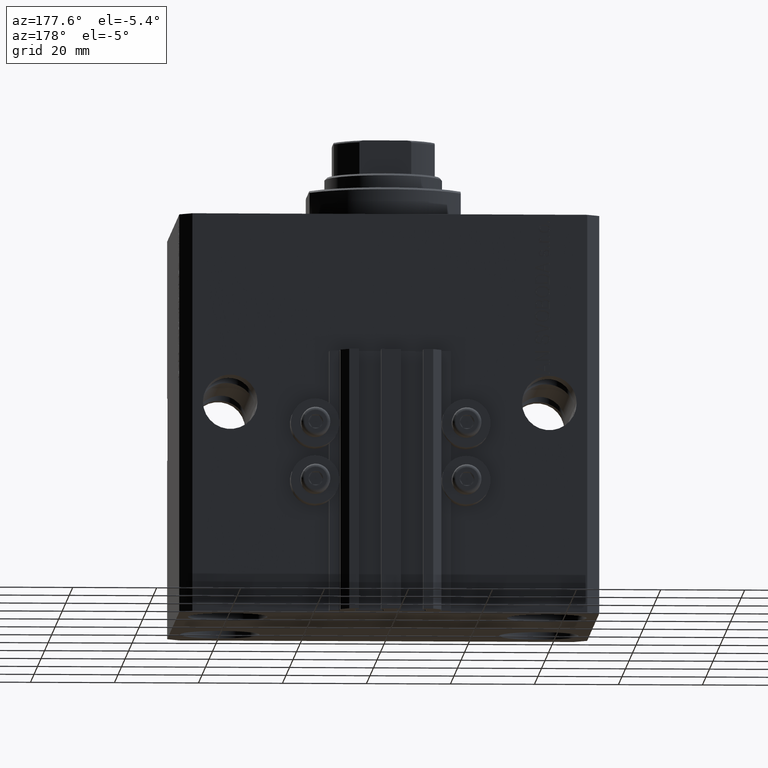
[diagram: clean part render]
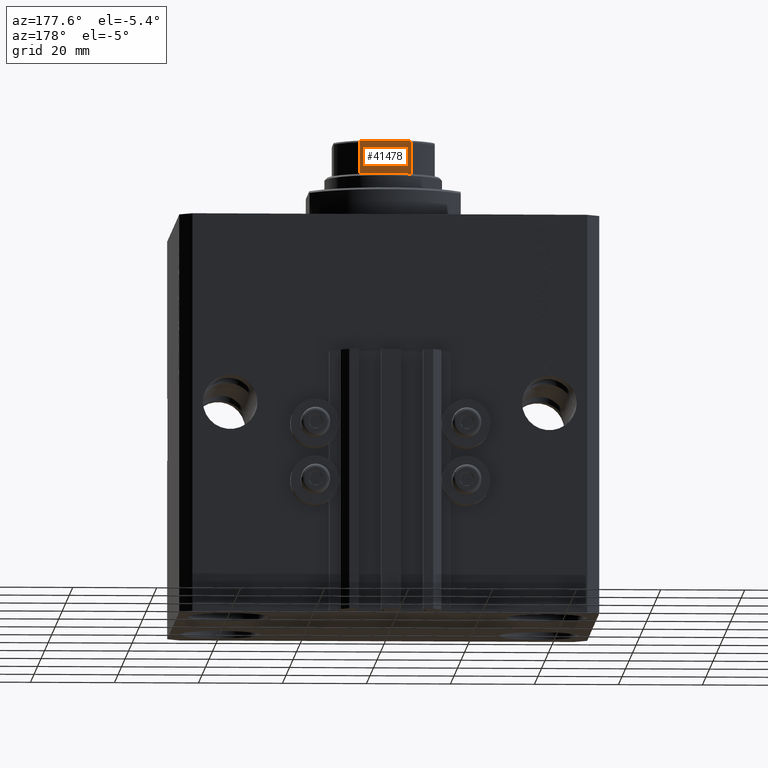
[diagram: same view with one face highlighted and labeled with its STEP entity id]
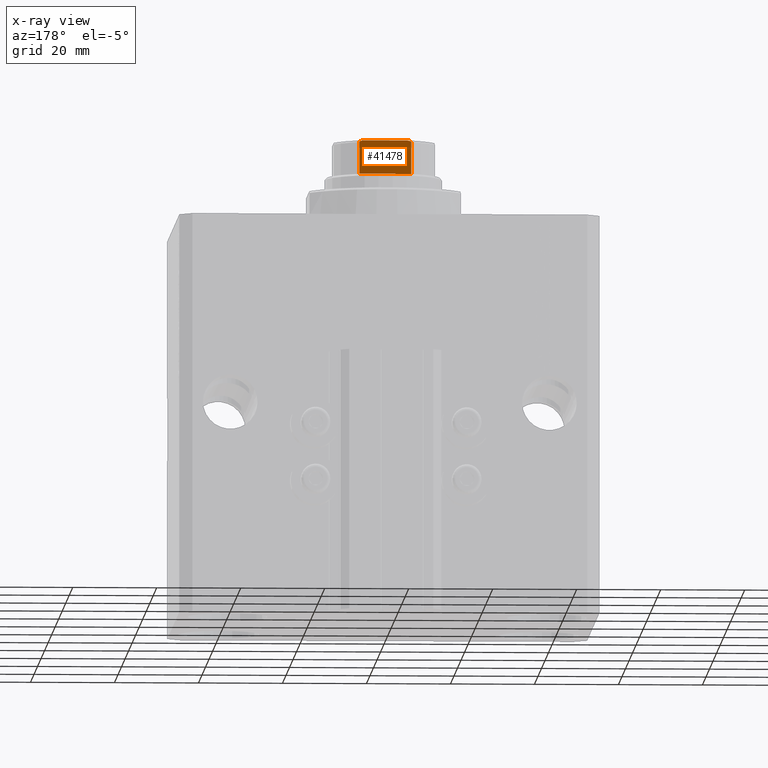
[diagram: x-ray of the same camera — body ghosted, the highlighted face saturated]
A machine part, auxiliary view. The second image highlights one B-rep face of the part: STEP entity #41478.
The next image is the same camera in x-ray: the body ghosted, the highlighted face saturated — about 0% of this face is hidden behind the body in this view.
In plain terms, the highlighted planar face has unit normal (0, -1, 0).
Its self-contained STEP definition (entity closure, byte-faithful):
#1029 = ORIENTED_EDGE ( 'NONE', *, *, #9070, .T. ) ;
#1265 = VERTEX_POINT ( 'NONE', #20724 ) ;
#3110 = CARTESIAN_POINT ( 'NONE',  ( -6.161088279078732910, 12.00000000000000000, 102.7146234191510104 ) ) ;
#3988 = FACE_OUTER_BOUND ( 'NONE', #45671, .T. ) ;
#5873 = EDGE_CURVE ( 'NONE', #28588, #12537, #7914, .T. ) ;
#6727 = CARTESIAN_POINT ( 'NONE',  ( -6.184658438426490434, 12.00000000000000000, 102.5999999999999943 ) ) ;
#6796 = CARTESIAN_POINT ( 'NONE',  ( -6.184658438426490434, 12.00000000000000000, -0.001000000000001000089 ) ) ;
#7577 = LINE ( 'NONE', #22254, #19291 ) ;
#7914 = B_SPLINE_CURVE_WITH_KNOTS ( 'NONE', 3,
 ( #36064, #22295, #29770, #44480, #14373, #25440, #10762, #47391, #36538, #37013 ),
 .UNSPECIFIED., .F., .F.,
 ( 4, 2, 2, 2, 4 ),
 ( 1.734723475976807094E-18, 0.0006877128613558521411, 0.001031569292033771706, 0.001203497507372732573, 0.001375425722711693440 ),
 .UNSPECIFIED. ) ;
#8096 = CARTESIAN_POINT ( 'NONE',  ( 6.184658438426490434, 11.99999999999999822, -0.001000000000001000089 ) ) ;
#8100 = ORIENTED_EDGE ( 'NONE', *, *, #47681, .F. ) ;
#8389 = CARTESIAN_POINT ( 'NONE',  ( -6.184658438426490434, 12.00000000000000000, 102.5999999999999943 ) ) ;
#9070 = EDGE_CURVE ( 'NONE', #1265, #30531, #28237, .T. ) ;
#10573 = CARTESIAN_POINT ( 'NONE',  ( -5.230795946637842420, 11.99999999999999645, 103.0999999999999943 ) ) ;
#10762 = CARTESIAN_POINT ( 'NONE',  ( 6.091027642353962435, 12.00000000000000355, 102.8080088155617489 ) ) ;
#11289 = EDGE_CURVE ( 'NONE', #30531, #20424, #21041, .T. ) ;
#11947 = DIRECTION ( 'NONE',  ( -0.000000000000000000, -0.000000000000000000, 1.000000000000000000 ) ) ;
#12537 = VERTEX_POINT ( 'NONE', #29059 ) ;
#14185 = CARTESIAN_POINT ( 'NONE',  ( -5.900889097622411761, 12.00000000000000178, 102.9429613869932894 ) ) ;
#14373 = CARTESIAN_POINT ( 'NONE',  ( 5.903192932991098374, 12.00000000000000000, 102.9415152347680191 ) ) ;
#14747 = EDGE_CURVE ( 'NONE', #28588, #20424, #7577, .T. ) ;
#15644 = CARTESIAN_POINT ( 'NONE',  ( 6.184658438426492211, 12.00000000000000178, 95.10000000000006537 ) ) ;
#15908 = ORIENTED_EDGE ( 'NONE', *, *, #34849, .T. ) ;
#17729 = DIRECTION ( 'NONE',  ( 1.000000000000000000, 7.228014483236695816E-17, 0.000000000000000000 ) ) ;
#17791 = CARTESIAN_POINT ( 'NONE',  ( -6.091003570118825650, 11.99999999999999822, 102.8080862465980942 ) ) ;
#19291 = VECTOR ( 'NONE', #45829, 1000.000000000000000 ) ;
#20424 = VERTEX_POINT ( 'NONE', #25708 ) ;
#20724 = CARTESIAN_POINT ( 'NONE',  ( -6.184658438426488658, 12.00000000000000000, 95.10000000000006537 ) ) ;
#20930 = CARTESIAN_POINT ( 'NONE',  ( -5.458892612163326774, 11.99999999999999822, 103.0796099716497594 ) ) ;
#21041 = B_SPLINE_CURVE_WITH_KNOTS ( 'NONE', 3,
 ( #6727, #36108, #3110, #17791, #32482, #14185, #28871, #20930, #10573, #35636 ),
 .UNSPECIFIED., .F., .F.,
 ( 4, 2, 2, 2, 4 ),
 ( 0.000000000000000000, 0.0001740189231935435705, 0.0003480378463870871411, 0.0006960756927741721138, 0.001392151385548330567 ),
 .UNSPECIFIED. ) ;
#21372 = VECTOR ( 'NONE', #26393, 1000.000000000000000 ) ;
#21470 = DIRECTION ( 'NONE',  ( -0.000000000000000000, -0.000000000000000000, 1.000000000000000000 ) ) ;
#22254 = CARTESIAN_POINT ( 'NONE',  ( -11.99999999999999822, 11.99999999999999822, 103.0999999999999943 ) ) ;
#22295 = CARTESIAN_POINT ( 'NONE',  ( 5.230809753656818550, 11.99999999999999289, 103.0999999999999659 ) ) ;
#23121 = VECTOR ( 'NONE', #21470, 1000.000000000000000 ) ;
#23356 = ORIENTED_EDGE ( 'NONE', *, *, #5873, .T. ) ;
#25190 = CARTESIAN_POINT ( 'NONE',  ( -11.99999999999999822, 11.99999999999999822, 103.0999999999999943 ) ) ;
#25440 = CARTESIAN_POINT ( 'NONE',  ( 6.045866546018598520, 12.00000000000000178, 102.8461068616299485 ) ) ;
#25708 = CARTESIAN_POINT ( 'NONE',  ( -5.000000000000001776, 11.99999999999999822, 103.0999999999999943 ) ) ;
#26393 = DIRECTION ( 'NONE',  ( -1.000000000000000000, -7.228014483236695816E-17, -0.000000000000000000 ) ) ;
#27324 = VECTOR ( 'NONE', #11947, 1000.000000000000000 ) ;
#28237 = LINE ( 'NONE', #6796, #23121 ) ;
#28588 = VERTEX_POINT ( 'NONE', #30460 ) ;
#28871 = CARTESIAN_POINT ( 'NONE',  ( -5.792513940493508429, 11.99999999999999822, 102.9846382036009373 ) ) ;
#29059 = CARTESIAN_POINT ( 'NONE',  ( 6.184658438426490434, 11.99999999999999822, 102.5999999999999943 ) ) ;
#29269 = PLANE ( 'NONE',  #35621 ) ;
#29770 = CARTESIAN_POINT ( 'NONE',  ( 5.459934723612541951, 12.00000000000000000, 103.0794964115812320 ) ) ;
#30460 = CARTESIAN_POINT ( 'NONE',  ( 5.000000000000002665, 12.00000000000000000, 103.0999999999999943 ) ) ;
#30492 = LINE ( 'NONE', #37258, #21372 ) ;
#30531 = VERTEX_POINT ( 'NONE', #8389 ) ;
#32482 = CARTESIAN_POINT ( 'NONE',  ( -6.046414714222231979, 11.99999999999999822, 102.8457872300293019 ) ) ;
#33128 = ORIENTED_EDGE ( 'NONE', *, *, #14747, .F. ) ;
#34849 = EDGE_CURVE ( 'NONE', #40157, #1265, #30492, .T. ) ;
#35621 = AXIS2_PLACEMENT_3D ( 'NONE', #25190, #47603, #17729 ) ;
#35636 = CARTESIAN_POINT ( 'NONE',  ( -5.000000000000001776, 11.99999999999999822, 103.0999999999999943 ) ) ;
#36064 = CARTESIAN_POINT ( 'NONE',  ( 5.000000000000002665, 12.00000000000000000, 103.0999999999999943 ) ) ;
#36108 = CARTESIAN_POINT ( 'NONE',  ( -6.184658438426491323, 12.00000000000000000, 102.6589344020393924 ) ) ;
#36538 = CARTESIAN_POINT ( 'NONE',  ( 6.184658438426495763, 12.00000000000000355, 102.6589821493407584 ) ) ;
#37013 = CARTESIAN_POINT ( 'NONE',  ( 6.184658438426490434, 11.99999999999999822, 102.5999999999999943 ) ) ;
#37258 = CARTESIAN_POINT ( 'NONE',  ( -11.99999999999999822, 11.99999999999999822, 95.09999999999999432 ) ) ;
#40157 = VERTEX_POINT ( 'NONE', #15644 ) ;
#40810 = ORIENTED_EDGE ( 'NONE', *, *, #11289, .T. ) ;
#41478 = ADVANCED_FACE ( 'NONE', ( #3988 ), #29269, .F. ) ;
#44239 = LINE ( 'NONE', #8096, #27324 ) ;
#44480 = CARTESIAN_POINT ( 'NONE',  ( 5.793822051191360956, 11.99999999999999822, 102.9841735219943217 ) ) ;
#45671 = EDGE_LOOP ( 'NONE', ( #33128, #23356, #8100, #15908, #1029, #40810 ) ) ;
#45829 = DIRECTION ( 'NONE',  ( -1.000000000000000000, -7.228014483236695816E-17, -0.000000000000000000 ) ) ;
#47391 = CARTESIAN_POINT ( 'NONE',  ( 6.160856115322540738, 12.00000000000000355, 102.7149782197479198 ) ) ;
#47603 = DIRECTION ( 'NONE',  ( 7.228014483236695816E-17, -1.000000000000000000, 0.000000000000000000 ) ) ;
#47681 = EDGE_CURVE ( 'NONE', #40157, #12537, #44239, .T. ) ;